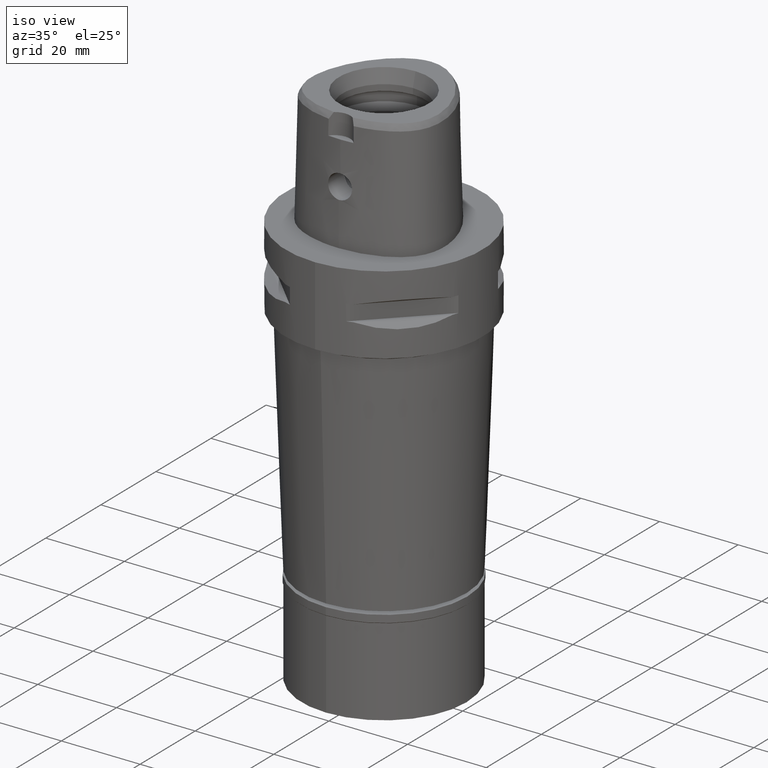
[diagram: clean part render]
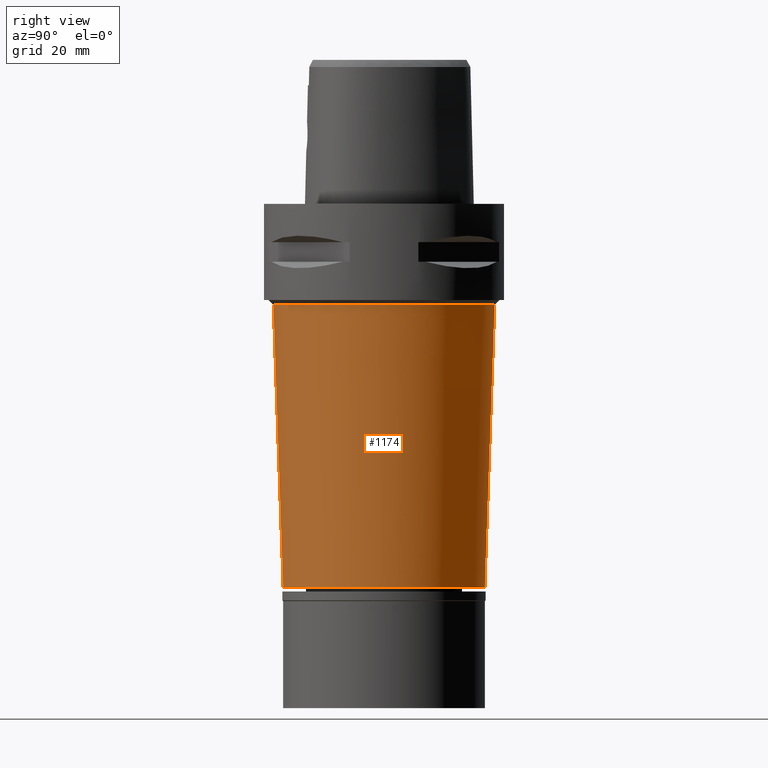
[diagram: tour spotlight — one face highlighted and labeled with its STEP entity id]
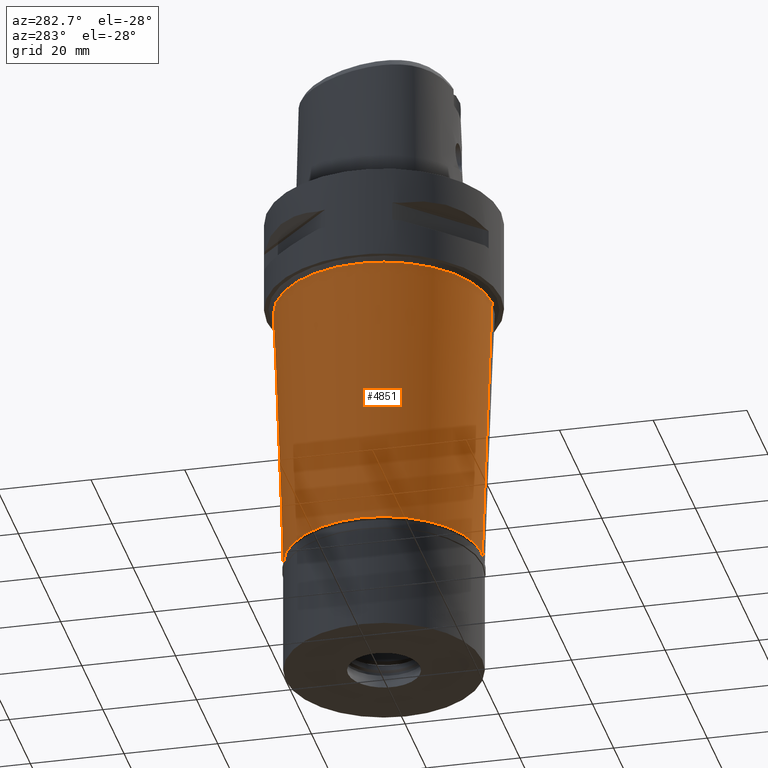
[diagram: tour spotlight — one face highlighted and labeled with its STEP entity id]
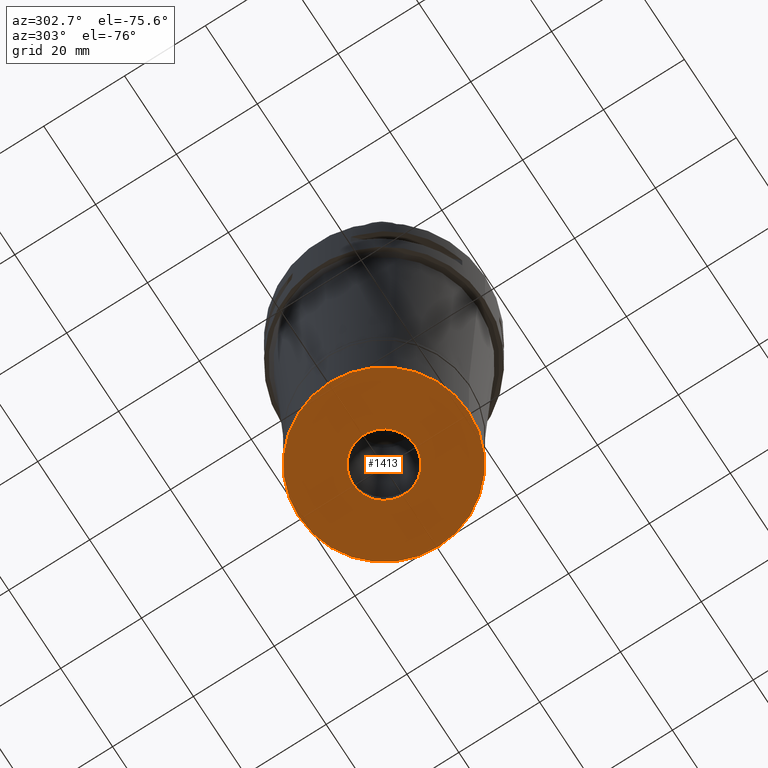
[diagram: tour spotlight — one face highlighted and labeled with its STEP entity id]
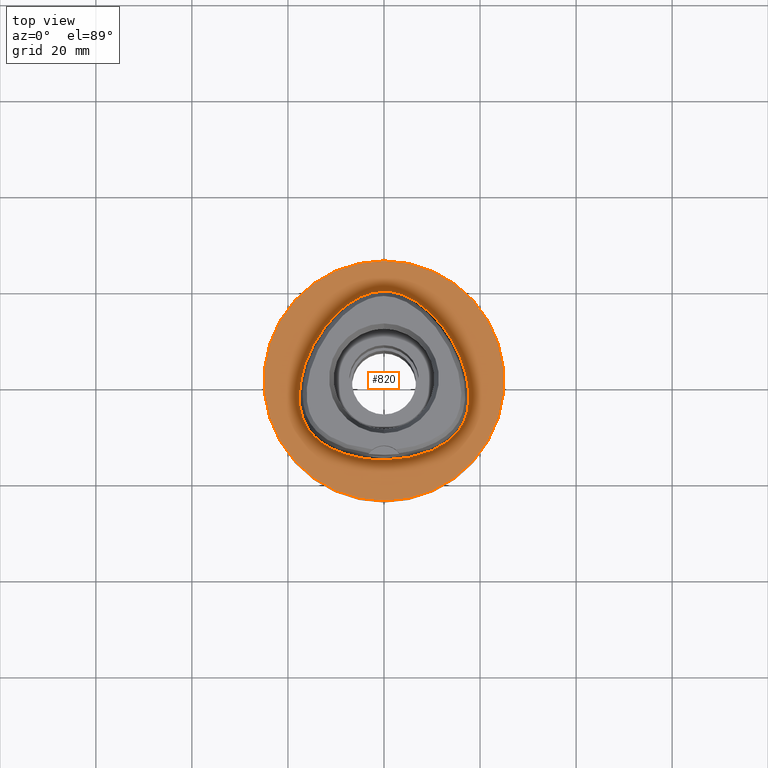
[diagram: tour spotlight — one face highlighted and labeled with its STEP entity id]
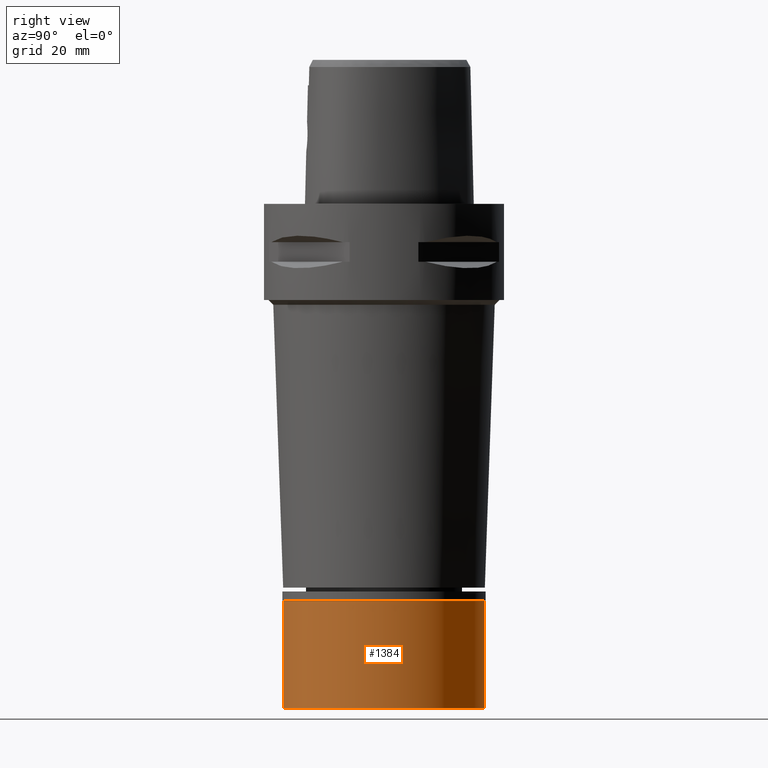
[diagram: tour spotlight — one face highlighted and labeled with its STEP entity id]
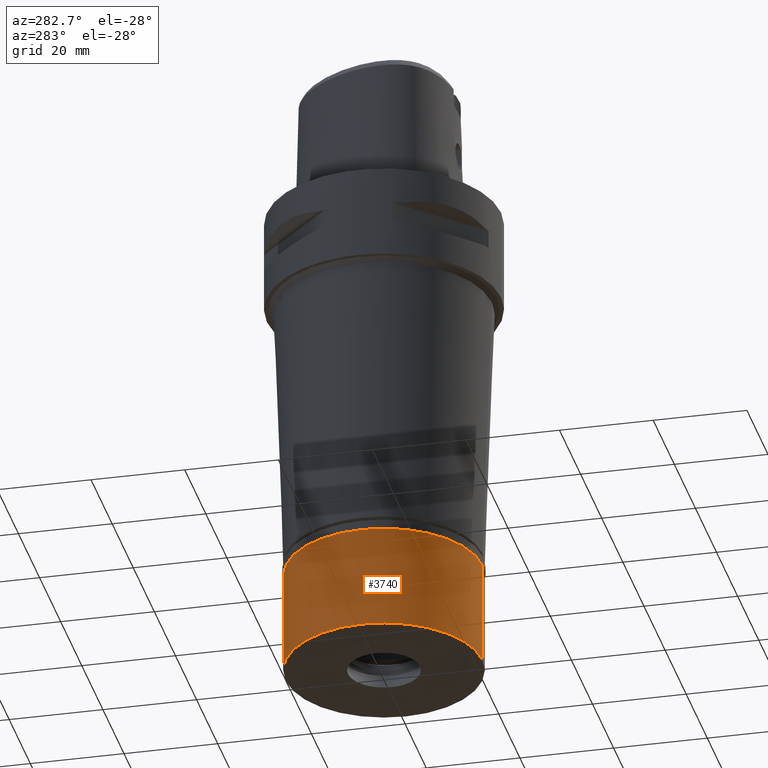
[diagram: tour spotlight — one face highlighted and labeled with its STEP entity id]
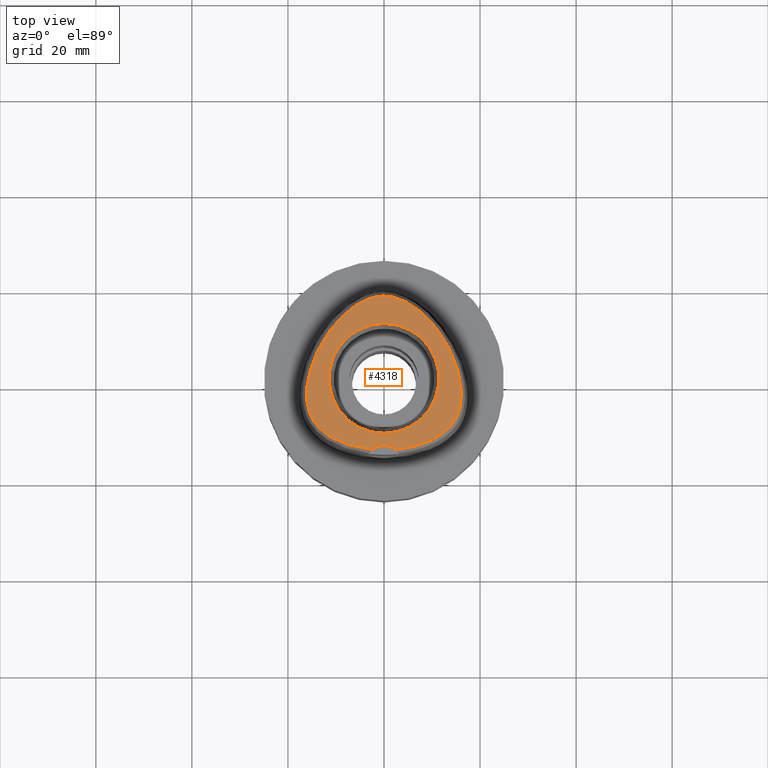
[diagram: tour spotlight — one face highlighted and labeled with its STEP entity id]
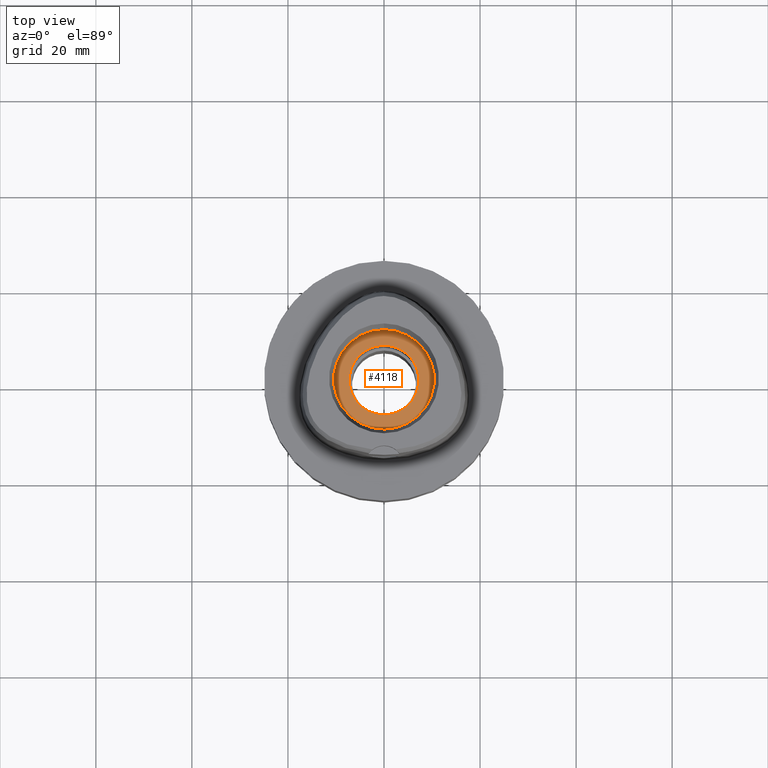
[diagram: tour spotlight — one face highlighted and labeled with its STEP entity id]
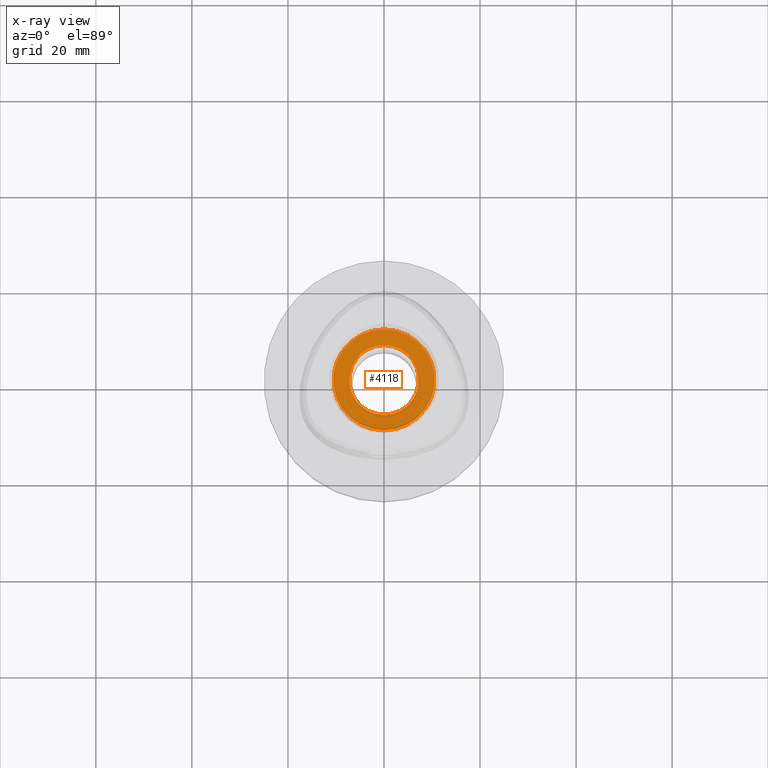
[diagram: x-ray of the same camera — body ghosted, this tour face saturated]
A machine part: a face-by-face anatomy tour. The part has 97 B-rep faces; the first image is the clean iso view, then the 8 largest visible faces are spotlighted one at a time (largest first), each with its STEP entity span.

Face 1 — right view, entity #1174. In plain terms, the highlighted conical surface has half-angle 2 deg.
Definition (entity closure, byte-faithful):
#244 = DIRECTION ( 'NONE',  ( 0.0000000000000000000, 1.000000000000000000, 0.0000000000000000000 ) ) ;
#315 = DIRECTION ( 'NONE',  ( 0.0000000000000000000, 0.0000000000000000000, 1.000000000000000000 ) ) ;
#345 = EDGE_LOOP ( 'NONE', ( #3146, #3630, #3706, #2074 ) ) ;
#496 = CARTESIAN_POINT ( 'NONE',  ( 0.0000000000000000000, 23.05683332305999755, -21.00000000000000000 ) ) ;
#557 = CARTESIAN_POINT ( 'NONE',  ( 0.0000000000000000000, 0.0000000000000000000, -21.00000000000000000 ) ) ;
#561 = FACE_OUTER_BOUND ( 'NONE', #345, .T. ) ;
#723 = CARTESIAN_POINT ( 'NONE',  ( 0.0000000000000000000, 21.00000000000000000, -79.90000000000000568 ) ) ;
#792 = EDGE_CURVE ( 'NONE', #4432, #4296, #2516, .T. ) ;
#963 = VERTEX_POINT ( 'NONE', #723 ) ;
#1069 = AXIS2_PLACEMENT_3D ( 'NONE', #4406, #1716, #244 ) ;
#1174 = ADVANCED_FACE ( 'NONE', ( #561 ), #4697, .T. ) ;
#1505 = EDGE_CURVE ( 'NONE', #4432, #2061, #3593, .T. ) ;
#1716 = DIRECTION ( 'NONE',  ( 0.0000000000000000000, 0.0000000000000000000, 1.000000000000000000 ) ) ;
#1762 = DIRECTION ( 'NONE',  ( 0.0000000000000000000, 0.0000000000000000000, 1.000000000000000000 ) ) ;
#2037 = DIRECTION ( 'NONE',  ( 0.0000000000000000000, -1.000000000000000000, 0.0000000000000000000 ) ) ;
#2061 = VERTEX_POINT ( 'NONE', #496 ) ;
#2074 = ORIENTED_EDGE ( 'NONE', *, *, #3164, .F. ) ;
#2190 = LINE ( 'NONE', #3081, #2566 ) ;
#2516 = LINE ( 'NONE', #3306, #2800 ) ;
#2566 = VECTOR ( 'NONE', #3391, 999.9999999999998863 ) ;
#2746 = AXIS2_PLACEMENT_3D ( 'NONE', #4396, #315, #3577 ) ;
#2800 = VECTOR ( 'NONE', #4820, 999.9999999999998863 ) ;
#3003 = CARTESIAN_POINT ( 'NONE',  ( 0.0000000000000000000, -21.00000000000000000, -79.90000000000000568 ) ) ;
#3081 = CARTESIAN_POINT ( 'NONE',  ( 0.0000000000000000000, 23.05683332305999755, -21.00000000000000000 ) ) ;
#3146 = ORIENTED_EDGE ( 'NONE', *, *, #1505, .F. ) ;
#3164 = EDGE_CURVE ( 'NONE', #2061, #963, #2190, .T. ) ;
#3192 = CARTESIAN_POINT ( 'NONE',  ( 0.0000000000000000000, -23.05683332305999755, -21.00000000000000000 ) ) ;
#3306 = CARTESIAN_POINT ( 'NONE',  ( 0.0000000000000000000, -23.05683332305999755, -21.00000000000000000 ) ) ;
#3391 = DIRECTION ( 'NONE',  ( 0.0000000000000000000, -0.03489949670246989682, -0.9993908270190968723 ) ) ;
#3577 = DIRECTION ( 'NONE',  ( 0.0000000000000000000, -1.000000000000000000, 0.0000000000000000000 ) ) ;
#3593 = CIRCLE ( 'NONE', #4619, 23.05683332305999755 ) ;
#3630 = ORIENTED_EDGE ( 'NONE', *, *, #792, .T. ) ;
#3706 = ORIENTED_EDGE ( 'NONE', *, *, #4048, .T. ) ;
#4048 = EDGE_CURVE ( 'NONE', #4296, #963, #4305, .T. ) ;
#4296 = VERTEX_POINT ( 'NONE', #3003 ) ;
#4305 = CIRCLE ( 'NONE', #2746, 21.00000000000000000 ) ;
#4396 = CARTESIAN_POINT ( 'NONE',  ( 0.0000000000000000000, 0.0000000000000000000, -79.90000000000000568 ) ) ;
#4406 = CARTESIAN_POINT ( 'NONE',  ( 0.0000000000000000000, 0.0000000000000000000, -50.45000000000000284 ) ) ;
#4432 = VERTEX_POINT ( 'NONE', #3192 ) ;
#4619 = AXIS2_PLACEMENT_3D ( 'NONE', #557, #1762, #2037 ) ;
#4697 = CONICAL_SURFACE ( 'NONE', #1069, 22.02841666152999878, 0.03490658503987931205 ) ;
#4820 = DIRECTION ( 'NONE',  ( 0.0000000000000000000, 0.03489949670246989682, -0.9993908270190968723 ) ) ;

Face 2 — auxiliary view, entity #4851. In plain terms, the highlighted conical surface has half-angle 2 deg.
Definition (entity closure, byte-faithful):
#496 = CARTESIAN_POINT ( 'NONE',  ( 0.0000000000000000000, 23.05683332305999755, -21.00000000000000000 ) ) ;
#546 = CARTESIAN_POINT ( 'NONE',  ( 0.0000000000000000000, 0.0000000000000000000, -21.00000000000000000 ) ) ;
#723 = CARTESIAN_POINT ( 'NONE',  ( 0.0000000000000000000, 21.00000000000000000, -79.90000000000000568 ) ) ;
#762 = AXIS2_PLACEMENT_3D ( 'NONE', #858, #4257, #1994 ) ;
#792 = EDGE_CURVE ( 'NONE', #4432, #4296, #2516, .T. ) ;
#858 = CARTESIAN_POINT ( 'NONE',  ( 0.0000000000000000000, 0.0000000000000000000, -79.90000000000000568 ) ) ;
#963 = VERTEX_POINT ( 'NONE', #723 ) ;
#1097 = AXIS2_PLACEMENT_3D ( 'NONE', #1165, #2305, #1939 ) ;
#1165 = CARTESIAN_POINT ( 'NONE',  ( 0.0000000000000000000, 0.0000000000000000000, -50.45000000000000284 ) ) ;
#1622 = CIRCLE ( 'NONE', #762, 21.00000000000000000 ) ;
#1624 = DIRECTION ( 'NONE',  ( 0.0000000000000000000, 0.0000000000000000000, -1.000000000000000000 ) ) ;
#1939 = DIRECTION ( 'NONE',  ( 0.0000000000000000000, 1.000000000000000000, 0.0000000000000000000 ) ) ;
#1947 = EDGE_CURVE ( 'NONE', #963, #4296, #1622, .T. ) ;
#1994 = DIRECTION ( 'NONE',  ( 0.0000000000000000000, 1.000000000000000000, 0.0000000000000000000 ) ) ;
#2050 = CONICAL_SURFACE ( 'NONE', #1097, 22.02841666152999878, 0.03490658503987931205 ) ;
#2061 = VERTEX_POINT ( 'NONE', #496 ) ;
#2092 = EDGE_CURVE ( 'NONE', #4432, #2061, #2892, .T. ) ;
#2190 = LINE ( 'NONE', #3081, #2566 ) ;
#2211 = EDGE_LOOP ( 'NONE', ( #4780, #4538, #3942, #2703 ) ) ;
#2305 = DIRECTION ( 'NONE',  ( 0.0000000000000000000, 0.0000000000000000000, 1.000000000000000000 ) ) ;
#2516 = LINE ( 'NONE', #3306, #2800 ) ;
#2566 = VECTOR ( 'NONE', #3391, 999.9999999999998863 ) ;
#2703 = ORIENTED_EDGE ( 'NONE', *, *, #3164, .T. ) ;
#2800 = VECTOR ( 'NONE', #4820, 999.9999999999998863 ) ;
#2892 = CIRCLE ( 'NONE', #4546, 23.05683332305999755 ) ;
#3003 = CARTESIAN_POINT ( 'NONE',  ( 0.0000000000000000000, -21.00000000000000000, -79.90000000000000568 ) ) ;
#3081 = CARTESIAN_POINT ( 'NONE',  ( 0.0000000000000000000, 23.05683332305999755, -21.00000000000000000 ) ) ;
#3125 = DIRECTION ( 'NONE',  ( 0.0000000000000000000, -1.000000000000000000, 0.0000000000000000000 ) ) ;
#3164 = EDGE_CURVE ( 'NONE', #2061, #963, #2190, .T. ) ;
#3192 = CARTESIAN_POINT ( 'NONE',  ( 0.0000000000000000000, -23.05683332305999755, -21.00000000000000000 ) ) ;
#3306 = CARTESIAN_POINT ( 'NONE',  ( 0.0000000000000000000, -23.05683332305999755, -21.00000000000000000 ) ) ;
#3391 = DIRECTION ( 'NONE',  ( 0.0000000000000000000, -0.03489949670246989682, -0.9993908270190968723 ) ) ;
#3942 = ORIENTED_EDGE ( 'NONE', *, *, #2092, .T. ) ;
#4257 = DIRECTION ( 'NONE',  ( 0.0000000000000000000, 0.0000000000000000000, 1.000000000000000000 ) ) ;
#4296 = VERTEX_POINT ( 'NONE', #3003 ) ;
#4432 = VERTEX_POINT ( 'NONE', #3192 ) ;
#4538 = ORIENTED_EDGE ( 'NONE', *, *, #792, .F. ) ;
#4546 = AXIS2_PLACEMENT_3D ( 'NONE', #546, #1624, #3125 ) ;
#4553 = FACE_OUTER_BOUND ( 'NONE', #2211, .T. ) ;
#4780 = ORIENTED_EDGE ( 'NONE', *, *, #1947, .T. ) ;
#4820 = DIRECTION ( 'NONE',  ( 0.0000000000000000000, 0.03489949670246989682, -0.9993908270190968723 ) ) ;
#4851 = ADVANCED_FACE ( 'NONE', ( #4553 ), #2050, .T. ) ;

Face 3 — auxiliary view, entity #1413. In plain terms, the highlighted planar face has unit normal (0, 0, -1).
Definition (entity closure, byte-faithful):
#126 = DIRECTION ( 'NONE',  ( 0.0000000000000000000, 0.0000000000000000000, 1.000000000000000000 ) ) ;
#184 = ORIENTED_EDGE ( 'NONE', *, *, #1420, .F. ) ;
#210 = CIRCLE ( 'NONE', #4297, 7.700000000000000178 ) ;
#527 = VERTEX_POINT ( 'NONE', #2375 ) ;
#577 = DIRECTION ( 'NONE',  ( 0.0000000000000000000, -1.000000000000000000, 0.0000000000000000000 ) ) ;
#664 = CARTESIAN_POINT ( 'NONE',  ( 0.0000000000000000000, 0.0000000000000000000, -24.29999999999999716 ) ) ;
#849 = VERTEX_POINT ( 'NONE', #2169 ) ;
#935 = CARTESIAN_POINT ( 'NONE',  ( 0.0000000000000000000, 0.0000000000000000000, -24.29999999999999716 ) ) ;
#945 = PLANE ( 'NONE',  #1149 ) ;
#1149 = AXIS2_PLACEMENT_3D ( 'NONE', #2793, #3632, #3184 ) ;
#1162 = FACE_OUTER_BOUND ( 'NONE', #4250, .T. ) ;
#1413 = ADVANCED_FACE ( 'NONE', ( #1162, #4321 ), #945, .T. ) ;
#1420 = EDGE_CURVE ( 'NONE', #849, #1582, #210, .T. ) ;
#1480 = EDGE_CURVE ( 'NONE', #3044, #527, #3904, .T. ) ;
#1582 = VERTEX_POINT ( 'NONE', #4293 ) ;
#1710 = CARTESIAN_POINT ( 'NONE',  ( 0.0000000000000000000, 0.0000000000000000000, -24.29999999999999716 ) ) ;
#1839 = EDGE_LOOP ( 'NONE', ( #184, #2191 ) ) ;
#1870 = AXIS2_PLACEMENT_3D ( 'NONE', #1710, #2504, #577 ) ;
#2028 = DIRECTION ( 'NONE',  ( 0.0000000000000000000, 1.000000000000000000, 0.0000000000000000000 ) ) ;
#2084 = DIRECTION ( 'NONE',  ( 0.0000000000000000000, 1.000000000000000000, 0.0000000000000000000 ) ) ;
#2091 = AXIS2_PLACEMENT_3D ( 'NONE', #664, #2567, #3640 ) ;
#2137 = CARTESIAN_POINT ( 'NONE',  ( 0.0000000000000000000, -21.00000000000000000, -24.29999999999999716 ) ) ;
#2169 = CARTESIAN_POINT ( 'NONE',  ( 0.0000000000000000000, 7.700000000000000178, -24.29999999999999716 ) ) ;
#2191 = ORIENTED_EDGE ( 'NONE', *, *, #3448, .F. ) ;
#2200 = ORIENTED_EDGE ( 'NONE', *, *, #3377, .F. ) ;
#2375 = CARTESIAN_POINT ( 'NONE',  ( 0.0000000000000000000, 21.00000000000000000, -24.29999999999999716 ) ) ;
#2404 = CIRCLE ( 'NONE', #2091, 7.700000000000000178 ) ;
#2455 = CARTESIAN_POINT ( 'NONE',  ( 0.0000000000000000000, 0.0000000000000000000, -24.29999999999999716 ) ) ;
#2504 = DIRECTION ( 'NONE',  ( 0.0000000000000000000, 0.0000000000000000000, 1.000000000000000000 ) ) ;
#2567 = DIRECTION ( 'NONE',  ( 0.0000000000000000000, 0.0000000000000000000, -1.000000000000000000 ) ) ;
#2793 = CARTESIAN_POINT ( 'NONE',  ( 0.0000000000000000000, 0.0000000000000000000, -24.29999999999999716 ) ) ;
#2844 = DIRECTION ( 'NONE',  ( 0.0000000000000000000, 0.0000000000000000000, -1.000000000000000000 ) ) ;
#3044 = VERTEX_POINT ( 'NONE', #2137 ) ;
#3184 = DIRECTION ( 'NONE',  ( 0.0000000000000000000, -1.000000000000000000, 0.0000000000000000000 ) ) ;
#3373 = ORIENTED_EDGE ( 'NONE', *, *, #1480, .F. ) ;
#3377 = EDGE_CURVE ( 'NONE', #527, #3044, #3583, .T. ) ;
#3448 = EDGE_CURVE ( 'NONE', #1582, #849, #2404, .T. ) ;
#3583 = CIRCLE ( 'NONE', #4061, 21.00000000000000000 ) ;
#3632 = DIRECTION ( 'NONE',  ( 0.0000000000000000000, 0.0000000000000000000, -1.000000000000000000 ) ) ;
#3640 = DIRECTION ( 'NONE',  ( 0.0000000000000000000, -1.000000000000000000, 0.0000000000000000000 ) ) ;
#3904 = CIRCLE ( 'NONE', #1870, 21.00000000000000000 ) ;
#4061 = AXIS2_PLACEMENT_3D ( 'NONE', #935, #126, #2028 ) ;
#4250 = EDGE_LOOP ( 'NONE', ( #2200, #3373 ) ) ;
#4293 = CARTESIAN_POINT ( 'NONE',  ( 0.0000000000000000000, -7.700000000000000178, -24.29999999999999716 ) ) ;
#4297 = AXIS2_PLACEMENT_3D ( 'NONE', #2455, #2844, #2084 ) ;
#4321 = FACE_BOUND ( 'NONE', #1839, .T. ) ;

Face 4 — top view, entity #820. In plain terms, the highlighted planar face has unit normal (0, 0, -1).
Definition (entity closure, byte-faithful):
#159 = DIRECTION ( 'NONE',  ( 0.0000000000000000000, -1.000000000000000000, 0.0000000000000000000 ) ) ;
#211 = CARTESIAN_POINT ( 'NONE',  ( 16.51672828905733681, 3.703437514886214643, -1.744312156005825912E-06 ) ) ;
#286 = CARTESIAN_POINT ( 'NONE',  ( -14.78833380201542447, -11.28232909967865361, 1.088239041252287570E-07 ) ) ;
#295 = CARTESIAN_POINT ( 'NONE',  ( 11.46563511374381328, 12.45218752828597530, -1.744312156005825912E-06 ) ) ;
#321 = ORIENTED_EDGE ( 'NONE', *, *, #4622, .F. ) ;
#404 = VERTEX_POINT ( 'NONE', #2058 ) ;
#417 = EDGE_LOOP ( 'NONE', ( #580, #321 ) ) ;
#559 = CARTESIAN_POINT ( 'NONE',  ( 16.20602475747607940, -9.356552756219091549, -1.744312156005825912E-06 ) ) ;
#578 = CARTESIAN_POINT ( 'NONE',  ( 13.50690096184690425, -12.48264651881767051, -1.744312156005825912E-06 ) ) ;
#580 = ORIENTED_EDGE ( 'NONE', *, *, #4655, .F. ) ;
#596 = CARTESIAN_POINT ( 'NONE',  ( -4.728927205647177168, 17.73480468501485419, 1.088239041252287570E-07 ) ) ;
#603 = CARTESIAN_POINT ( 'NONE',  ( 0.6801907889749732039, 18.69500004360072154, -1.744312156005825912E-06 ) ) ;
#642 = FACE_OUTER_BOUND ( 'NONE', #417, .T. ) ;
#658 = CARTESIAN_POINT ( 'NONE',  ( 17.71143739935840600, -3.269218749715581129, -1.744312156005825912E-06 ) ) ;
#820 = ADVANCED_FACE ( 'NONE', ( #642, #1342 ), #2145, .F. ) ;
#941 = DIRECTION ( 'NONE',  ( 0.0000000000000000000, 0.0000000000000000000, -1.000000000000000000 ) ) ;
#985 = CARTESIAN_POINT ( 'NONE',  ( -16.51672824523044270, 3.703437499071053907, 1.088239041252287570E-07 ) ) ;
#993 = CARTESIAN_POINT ( 'NONE',  ( 7.243243713393999948E-11, 18.69499999997999851, 1.586138627847999922E-13 ) ) ;
#1040 = CARTESIAN_POINT ( 'NONE',  ( -2.040572357107150125, 18.55015624731283452, 1.088239041252287570E-07 ) ) ;
#1064 = CARTESIAN_POINT ( 'NONE',  ( -1.728596458601000357E-11, -16.45500000000000185, 1.597240858093999809E-13 ) ) ;
#1272 = CARTESIAN_POINT ( 'NONE',  ( 0.0000000000000000000, 1.284348330606000068E-14, 0.0000000000000000000 ) ) ;
#1334 = CARTESIAN_POINT ( 'NONE',  ( 2.040572366645008184, 18.55015629294168988, -1.744312156005825912E-06 ) ) ;
#1342 = FACE_BOUND ( 'NONE', #1740, .T. ) ;
#1358 = CARTESIAN_POINT ( 'NONE',  ( 14.78833383575404170, -11.28232913167233242, -1.744312156005825912E-06 ) ) ;
#1401 = CARTESIAN_POINT ( 'NONE',  ( -13.50690093311215989, -12.48264648222586004, 1.088239041252287570E-07 ) ) ;
#1427 = CARTESIAN_POINT ( 'NONE',  ( -16.66912841889917374, -8.445800780143073894, 1.088239041252287570E-07 ) ) ;
#1481 = CIRCLE ( 'NONE', #2520, 25.00000000000000000 ) ;
#1559 = B_SPLINE_CURVE_WITH_KNOTS ( 'NONE', 3,
 ( #3287, #3209, #1040, #596, #4026, #2891, #2107, #985, #2553, #2131, #2081, #1811, #1427, #1782, #4803, #286, #1401, #4720, #3605, #4051, #4451, #1064 ),
 .UNSPECIFIED., .F., .F.,
 ( 4, 1, 1, 1, 1, 1, 1, 1, 1, 1, 1, 1, 1, 1, 1, 1, 1, 1, 1, 4 ),
 ( 0.0000000000000000000, 0.04166666666808999803, 0.08333333333469000737, 0.1666666666679000042, 0.2500000000011000090, 0.3333333333342999860, 0.4166666666675999942, 0.5000000000008000267, 0.5416666666674000430, 0.5833333333340000593, 0.6250000000005999645, 0.6458333333339000282, 0.6666666666671999808, 0.6875000000005000445, 0.7083333333337999971, 0.7500000000004000134, 0.7916666666671000607, 0.8333333333336000459, 0.9166666666668999985, 1.000000000000000000 ),
 .UNSPECIFIED. ) ;
#1681 = ORIENTED_EDGE ( 'NONE', *, *, #2993, .F. ) ;
#1740 = EDGE_LOOP ( 'NONE', ( #3952, #1681 ) ) ;
#1771 = DIRECTION ( 'NONE',  ( 0.0000000000000000000, -1.000000000000000000, 0.0000000000000000000 ) ) ;
#1782 = CARTESIAN_POINT ( 'NONE',  ( -16.20602471727766059, -9.356552733011271883, 1.088239041252287570E-07 ) ) ;
#1811 = CARTESIAN_POINT ( 'NONE',  ( -17.16495051518848669, -7.165908202348020950, 1.088239041252287570E-07 ) ) ;
#1851 = B_SPLINE_CURVE_WITH_KNOTS ( 'NONE', 3,
 ( #2795, #2457, #3185, #3268, #4032, #578, #1358, #2161, #559, #3585, #2064, #3982, #658, #2085, #211, #3657, #295, #4295, #4374, #1334, #603, #993 ),
 .UNSPECIFIED., .F., .F.,
 ( 4, 1, 1, 1, 1, 1, 1, 1, 1, 1, 1, 1, 1, 1, 1, 1, 1, 1, 1, 4 ),
 ( 0.0000000000000000000, 0.08333333333350000094, 0.1666666666668000230, 0.2083333333333000081, 0.2499999999998999967, 0.2916666666666000163, 0.3124999999998999689, 0.3333333333331000015, 0.3541666666665000407, 0.3749999999997999933, 0.4166666666664000096, 0.4583333333330000259, 0.4999999999995999866, 0.5833333333328000192, 0.6666666666660999718, 0.7499999999993000044, 0.8333333333325000369, 0.9166666666657000695, 0.9583333333322999747, 1.000000000000000000 ),
 .UNSPECIFIED. ) ;
#2058 = CARTESIAN_POINT ( 'NONE',  ( 0.0000000000000000000, -25.00000000000000000, 0.0000000000000000000 ) ) ;
#2064 = CARTESIAN_POINT ( 'NONE',  ( 17.16495055975975248, -7.165908215576941132, -1.744312156005825912E-06 ) ) ;
#2081 = CARTESIAN_POINT ( 'NONE',  ( -17.56373942662683874, -5.455996093363066457, 1.088239041252287570E-07 ) ) ;
#2085 = CARTESIAN_POINT ( 'NONE',  ( 17.49754716624818229, -0.2285937423437257865, -1.744312156005825912E-06 ) ) ;
#2107 = CARTESIAN_POINT ( 'NONE',  ( -14.38008119453428613, 8.302343748632480924, 1.088239041252287570E-07 ) ) ;
#2131 = CARTESIAN_POINT ( 'NONE',  ( -17.71143735288884002, -3.269218750017643949, 1.088239041252287570E-07 ) ) ;
#2145 = PLANE ( 'NONE',  #3748 ) ;
#2161 = CARTESIAN_POINT ( 'NONE',  ( 15.64884227789647220, -10.21298830693598703, -1.744312156005825912E-06 ) ) ;
#2282 = DIRECTION ( 'NONE',  ( 0.0000000000000000000, 0.0000000000000000000, -1.000000000000000000 ) ) ;
#2457 = CARTESIAN_POINT ( 'NONE',  ( 1.683697725103081133, -16.45500004360071244, -1.744312156005826124E-06 ) ) ;
#2520 = AXIS2_PLACEMENT_3D ( 'NONE', #4290, #2282, #2817 ) ;
#2553 = CARTESIAN_POINT ( 'NONE',  ( -17.49754712038485494, -0.2285937504776754392, 1.088239041252287570E-07 ) ) ;
#2580 = VERTEX_POINT ( 'NONE', #3591 ) ;
#2795 = CARTESIAN_POINT ( 'NONE',  ( -1.728596458601000357E-11, -16.45500000000000185, 1.597240858093999809E-13 ) ) ;
#2817 = DIRECTION ( 'NONE',  ( 0.0000000000000000000, 1.000000000000000000, 0.0000000000000000000 ) ) ;
#2891 = CARTESIAN_POINT ( 'NONE',  ( -11.46563507814293104, 12.45218749823809823, 1.088239041252287570E-07 ) ) ;
#2993 = EDGE_CURVE ( 'NONE', #4379, #2580, #1851, .T. ) ;
#3185 = CARTESIAN_POINT ( 'NONE',  ( 5.051093175302274751, -16.15562504316535808, -1.744312156005825912E-06 ) ) ;
#3209 = CARTESIAN_POINT ( 'NONE',  ( -0.6801907856718545364, 18.69499999728294526, 1.088239041252287438E-07 ) ) ;
#3268 = CARTESIAN_POINT ( 'NONE',  ( 8.946741571141094695, -15.03902347871851930, -1.744312156005825912E-06 ) ) ;
#3287 = CARTESIAN_POINT ( 'NONE',  ( 7.243243713393999948E-11, 18.69499999997999851, 1.586138627847999922E-13 ) ) ;
#3304 = AXIS2_PLACEMENT_3D ( 'NONE', #1272, #941, #159 ) ;
#3585 = CARTESIAN_POINT ( 'NONE',  ( 16.66912846131180004, -8.445800799004141268, -1.744312156005825912E-06 ) ) ;
#3591 = CARTESIAN_POINT ( 'NONE',  ( 7.243243713393999948E-11, 18.69499999997999851, 1.586138627847999922E-13 ) ) ;
#3605 = CARTESIAN_POINT ( 'NONE',  ( -8.946741555252165412, -15.03902343493533955, 1.088239041252287570E-07 ) ) ;
#3641 = CARTESIAN_POINT ( 'NONE',  ( 0.0000000000000000000, 1.224646799146999965E-14, 0.0000000000000000000 ) ) ;
#3657 = CARTESIAN_POINT ( 'NONE',  ( 14.38008123485800027, 8.302343771910768666, -1.744312156005825912E-06 ) ) ;
#3748 = AXIS2_PLACEMENT_3D ( 'NONE', #3641, #4357, #1771 ) ;
#3952 = ORIENTED_EDGE ( 'NONE', *, *, #3961, .F. ) ;
#3961 = EDGE_CURVE ( 'NONE', #2580, #4379, #1559, .T. ) ;
#3982 = CARTESIAN_POINT ( 'NONE',  ( 17.56373947267987745, -5.455996099955068956, -1.744312156005825912E-06 ) ) ;
#4026 = CARTESIAN_POINT ( 'NONE',  ( -7.967839662530810330, 15.83070312284171699, 1.088239041252287570E-07 ) ) ;
#4032 = CARTESIAN_POINT ( 'NONE',  ( 11.68694518746131905, -13.70394535052376739, -1.744312156005825912E-06 ) ) ;
#4051 = CARTESIAN_POINT ( 'NONE',  ( -5.051093167090364489, -16.15562499730855706, 1.088239041252287570E-07 ) ) ;
#4095 = CIRCLE ( 'NONE', #3304, 25.00000000000000000 ) ;
#4228 = CARTESIAN_POINT ( 'NONE',  ( -1.728596458601000357E-11, -16.45500000000000185, 1.597240858093999809E-13 ) ) ;
#4290 = CARTESIAN_POINT ( 'NONE',  ( 0.0000000000000000000, 1.284348330606000068E-14, 0.0000000000000000000 ) ) ;
#4295 = CARTESIAN_POINT ( 'NONE',  ( 7.967839691386575218, 15.83070315959670893, -1.744312156005825912E-06 ) ) ;
#4343 = VERTEX_POINT ( 'NONE', #4494 ) ;
#4357 = DIRECTION ( 'NONE',  ( 0.0000000000000000000, 0.0000000000000000000, -1.000000000000000000 ) ) ;
#4374 = CARTESIAN_POINT ( 'NONE',  ( 4.728927225558295255, 17.73480472737178459, -1.744312156005825912E-06 ) ) ;
#4379 = VERTEX_POINT ( 'NONE', #4228 ) ;
#4451 = CARTESIAN_POINT ( 'NONE',  ( -1.683697722367677452, -16.45499999727613627, 1.088239041252287570E-07 ) ) ;
#4494 = CARTESIAN_POINT ( 'NONE',  ( 0.0000000000000000000, 25.00000000000000000, 0.0000000000000000000 ) ) ;
#4622 = EDGE_CURVE ( 'NONE', #404, #4343, #4095, .T. ) ;
#4655 = EDGE_CURVE ( 'NONE', #4343, #404, #1481, .T. ) ;
#4720 = CARTESIAN_POINT ( 'NONE',  ( -11.68694516448478105, -13.70394531012862060, 1.088239041252287570E-07 ) ) ;
#4803 = CARTESIAN_POINT ( 'NONE',  ( -15.64884224035295546, -10.21298827964216294, 1.088239041252287570E-07 ) ) ;

Face 5 — right view, entity #1384. In plain terms, the highlighted cylindrical surface (partial cylindrical patch) has radius 21 mm, axis along (0, 0, -1).
Definition (entity closure, byte-faithful):
#16 = EDGE_CURVE ( 'NONE', #4857, #2040, #368, .T. ) ;
#251 = ORIENTED_EDGE ( 'NONE', *, *, #3336, .F. ) ;
#368 = CIRCLE ( 'NONE', #4609, 21.00000000000000000 ) ;
#389 = DIRECTION ( 'NONE',  ( 0.0000000000000000000, 1.000000000000000000, 0.0000000000000000000 ) ) ;
#484 = LINE ( 'NONE', #4576, #4225 ) ;
#527 = VERTEX_POINT ( 'NONE', #2375 ) ;
#577 = DIRECTION ( 'NONE',  ( 0.0000000000000000000, -1.000000000000000000, 0.0000000000000000000 ) ) ;
#1269 = LINE ( 'NONE', #3574, #1368 ) ;
#1352 = CARTESIAN_POINT ( 'NONE',  ( 0.0000000000000000000, 21.00000000000000000, -2.000000000000000000 ) ) ;
#1368 = VECTOR ( 'NONE', #3949, 1000.000000000000000 ) ;
#1384 = ADVANCED_FACE ( 'NONE', ( #2748 ), #4650, .T. ) ;
#1462 = DIRECTION ( 'NONE',  ( 0.0000000000000000000, 0.0000000000000000000, -1.000000000000000000 ) ) ;
#1480 = EDGE_CURVE ( 'NONE', #3044, #527, #3904, .T. ) ;
#1710 = CARTESIAN_POINT ( 'NONE',  ( 0.0000000000000000000, 0.0000000000000000000, -24.29999999999999716 ) ) ;
#1870 = AXIS2_PLACEMENT_3D ( 'NONE', #1710, #2504, #577 ) ;
#2040 = VERTEX_POINT ( 'NONE', #3868 ) ;
#2137 = CARTESIAN_POINT ( 'NONE',  ( 0.0000000000000000000, -21.00000000000000000, -24.29999999999999716 ) ) ;
#2215 = EDGE_LOOP ( 'NONE', ( #4848, #4358, #4292, #251 ) ) ;
#2375 = CARTESIAN_POINT ( 'NONE',  ( 0.0000000000000000000, 21.00000000000000000, -24.29999999999999716 ) ) ;
#2504 = DIRECTION ( 'NONE',  ( 0.0000000000000000000, 0.0000000000000000000, 1.000000000000000000 ) ) ;
#2748 = FACE_OUTER_BOUND ( 'NONE', #2215, .T. ) ;
#2750 = DIRECTION ( 'NONE',  ( 0.0000000000000000000, 0.0000000000000000000, -1.000000000000000000 ) ) ;
#2751 = EDGE_CURVE ( 'NONE', #2040, #3044, #484, .T. ) ;
#3041 = AXIS2_PLACEMENT_3D ( 'NONE', #4268, #3781, #3419 ) ;
#3044 = VERTEX_POINT ( 'NONE', #2137 ) ;
#3336 = EDGE_CURVE ( 'NONE', #4857, #527, #1269, .T. ) ;
#3419 = DIRECTION ( 'NONE',  ( 0.0000000000000000000, -1.000000000000000000, 0.0000000000000000000 ) ) ;
#3574 = CARTESIAN_POINT ( 'NONE',  ( 0.0000000000000000000, 21.00000000000000000, -2.000000000000000000 ) ) ;
#3781 = DIRECTION ( 'NONE',  ( 0.0000000000000000000, 0.0000000000000000000, -1.000000000000000000 ) ) ;
#3868 = CARTESIAN_POINT ( 'NONE',  ( 0.0000000000000000000, -21.00000000000000000, -2.000000000000000000 ) ) ;
#3904 = CIRCLE ( 'NONE', #1870, 21.00000000000000000 ) ;
#3949 = DIRECTION ( 'NONE',  ( 0.0000000000000000000, 0.0000000000000000000, -1.000000000000000000 ) ) ;
#4225 = VECTOR ( 'NONE', #2750, 1000.000000000000000 ) ;
#4268 = CARTESIAN_POINT ( 'NONE',  ( 0.0000000000000000000, 0.0000000000000000000, 0.0000000000000000000 ) ) ;
#4292 = ORIENTED_EDGE ( 'NONE', *, *, #1480, .T. ) ;
#4358 = ORIENTED_EDGE ( 'NONE', *, *, #2751, .T. ) ;
#4576 = CARTESIAN_POINT ( 'NONE',  ( 0.0000000000000000000, -21.00000000000000000, -2.000000000000000000 ) ) ;
#4609 = AXIS2_PLACEMENT_3D ( 'NONE', #4835, #1462, #389 ) ;
#4650 = CYLINDRICAL_SURFACE ( 'NONE', #3041, 21.00000000000000000 ) ;
#4835 = CARTESIAN_POINT ( 'NONE',  ( 0.0000000000000000000, 0.0000000000000000000, -2.000000000000000000 ) ) ;
#4848 = ORIENTED_EDGE ( 'NONE', *, *, #16, .T. ) ;
#4857 = VERTEX_POINT ( 'NONE', #1352 ) ;

Face 6 — auxiliary view, entity #3740. In plain terms, the highlighted cylindrical surface (partial cylindrical patch) has radius 21 mm, axis along (0, 0, -1).
Definition (entity closure, byte-faithful):
#82 = DIRECTION ( 'NONE',  ( 0.0000000000000000000, 0.0000000000000000000, -1.000000000000000000 ) ) ;
#119 = ORIENTED_EDGE ( 'NONE', *, *, #3336, .T. ) ;
#126 = DIRECTION ( 'NONE',  ( 0.0000000000000000000, 0.0000000000000000000, 1.000000000000000000 ) ) ;
#268 = DIRECTION ( 'NONE',  ( 0.0000000000000000000, 0.0000000000000000000, -1.000000000000000000 ) ) ;
#484 = LINE ( 'NONE', #4576, #4225 ) ;
#527 = VERTEX_POINT ( 'NONE', #2375 ) ;
#589 = AXIS2_PLACEMENT_3D ( 'NONE', #3559, #268, #2534 ) ;
#707 = ORIENTED_EDGE ( 'NONE', *, *, #3377, .T. ) ;
#935 = CARTESIAN_POINT ( 'NONE',  ( 0.0000000000000000000, 0.0000000000000000000, -24.29999999999999716 ) ) ;
#1269 = LINE ( 'NONE', #3574, #1368 ) ;
#1352 = CARTESIAN_POINT ( 'NONE',  ( 0.0000000000000000000, 21.00000000000000000, -2.000000000000000000 ) ) ;
#1368 = VECTOR ( 'NONE', #3949, 1000.000000000000000 ) ;
#1843 = ORIENTED_EDGE ( 'NONE', *, *, #2947, .T. ) ;
#1930 = CIRCLE ( 'NONE', #589, 21.00000000000000000 ) ;
#2028 = DIRECTION ( 'NONE',  ( 0.0000000000000000000, 1.000000000000000000, 0.0000000000000000000 ) ) ;
#2034 = CARTESIAN_POINT ( 'NONE',  ( 0.0000000000000000000, 0.0000000000000000000, 0.0000000000000000000 ) ) ;
#2040 = VERTEX_POINT ( 'NONE', #3868 ) ;
#2137 = CARTESIAN_POINT ( 'NONE',  ( 0.0000000000000000000, -21.00000000000000000, -24.29999999999999716 ) ) ;
#2375 = CARTESIAN_POINT ( 'NONE',  ( 0.0000000000000000000, 21.00000000000000000, -24.29999999999999716 ) ) ;
#2398 = CYLINDRICAL_SURFACE ( 'NONE', #3894, 21.00000000000000000 ) ;
#2405 = ORIENTED_EDGE ( 'NONE', *, *, #2751, .F. ) ;
#2534 = DIRECTION ( 'NONE',  ( 0.0000000000000000000, -1.000000000000000000, 0.0000000000000000000 ) ) ;
#2719 = FACE_OUTER_BOUND ( 'NONE', #2853, .T. ) ;
#2750 = DIRECTION ( 'NONE',  ( 0.0000000000000000000, 0.0000000000000000000, -1.000000000000000000 ) ) ;
#2751 = EDGE_CURVE ( 'NONE', #2040, #3044, #484, .T. ) ;
#2853 = EDGE_LOOP ( 'NONE', ( #707, #2405, #1843, #119 ) ) ;
#2947 = EDGE_CURVE ( 'NONE', #2040, #4857, #1930, .T. ) ;
#3044 = VERTEX_POINT ( 'NONE', #2137 ) ;
#3336 = EDGE_CURVE ( 'NONE', #4857, #527, #1269, .T. ) ;
#3377 = EDGE_CURVE ( 'NONE', #527, #3044, #3583, .T. ) ;
#3554 = DIRECTION ( 'NONE',  ( 0.0000000000000000000, -1.000000000000000000, 0.0000000000000000000 ) ) ;
#3559 = CARTESIAN_POINT ( 'NONE',  ( 0.0000000000000000000, 0.0000000000000000000, -2.000000000000000000 ) ) ;
#3574 = CARTESIAN_POINT ( 'NONE',  ( 0.0000000000000000000, 21.00000000000000000, -2.000000000000000000 ) ) ;
#3583 = CIRCLE ( 'NONE', #4061, 21.00000000000000000 ) ;
#3740 = ADVANCED_FACE ( 'NONE', ( #2719 ), #2398, .T. ) ;
#3868 = CARTESIAN_POINT ( 'NONE',  ( 0.0000000000000000000, -21.00000000000000000, -2.000000000000000000 ) ) ;
#3894 = AXIS2_PLACEMENT_3D ( 'NONE', #2034, #82, #3554 ) ;
#3949 = DIRECTION ( 'NONE',  ( 0.0000000000000000000, 0.0000000000000000000, -1.000000000000000000 ) ) ;
#4061 = AXIS2_PLACEMENT_3D ( 'NONE', #935, #126, #2028 ) ;
#4225 = VECTOR ( 'NONE', #2750, 1000.000000000000000 ) ;
#4576 = CARTESIAN_POINT ( 'NONE',  ( 0.0000000000000000000, -21.00000000000000000, -2.000000000000000000 ) ) ;
#4857 = VERTEX_POINT ( 'NONE', #1352 ) ;

Face 7 — top view, entity #4318. In plain terms, the highlighted planar face has unit normal (0, 0, 1).
Definition (entity closure, byte-faithful):
#1 = FACE_BOUND ( 'NONE', #1895, .T. ) ;
#42 = CARTESIAN_POINT ( 'NONE',  ( 1.161482229273715472, 17.07843133414928616, 30.00000000000196110 ) ) ;
#90 = CARTESIAN_POINT ( 'NONE',  ( 15.71128456931621109, -6.534031654963468050, 30.00000000000452260 ) ) ;
#99 = CARTESIAN_POINT ( 'NONE',  ( -6.862723739081268093, 14.51536572209313114, 29.99999999999658584 ) ) ;
#124 = CARTESIAN_POINT ( 'NONE',  ( -2.411640998825917759, 16.81591728050882040, 29.99999999999164757 ) ) ;
#140 = CARTESIAN_POINT ( 'NONE',  ( 16.12546998862945102, -3.533461825553982916, 30.00000000000036948 ) ) ;
#152 = CARTESIAN_POINT ( 'NONE',  ( -1.772880577022724946, 16.97196055716294438, 29.99999999998829026 ) ) ;
#168 = CARTESIAN_POINT ( 'NONE',  ( 14.08238499151744882, -9.704590128438692176, 29.99999999999754152 ) ) ;
#200 = CARTESIAN_POINT ( 'NONE',  ( -4.498660734199969369, 15.99814720006455993, 29.99999999998820499 ) ) ;
#287 = CIRCLE ( 'NONE', #823, 4.000000000000000888 ) ;
#331 = CARTESIAN_POINT ( 'NONE',  ( -6.301949014297999984E-11, 17.15328888647999861, 30.00000000000000000 ) ) ;
#372 = CARTESIAN_POINT ( 'NONE',  ( 2.412811123805280733, 16.81558681049653359, 30.00000000000481037 ) ) ;
#397 = CARTESIAN_POINT ( 'NONE',  ( 11.11868440495987720, 10.19157821280170317, 29.99999999999367617 ) ) ;
#445 = CARTESIAN_POINT ( 'NONE',  ( -9.750168658359971374, -12.92810664734148496, 29.99999999999779021 ) ) ;
#472 = CARTESIAN_POINT ( 'NONE',  ( -11.11900396222793219, 10.19116357425952124, 29.99999999999465672 ) ) ;
#570 = CARTESIAN_POINT ( 'NONE',  ( -16.12543283909296576, -3.535877041747994554, 29.99999999999552713 ) ) ;
#686 = VERTEX_POINT ( 'NONE', #4761 ) ;
#733 = EDGE_LOOP ( 'NONE', ( #1647, #3038, #1888 ) ) ;
#759 = CARTESIAN_POINT ( 'NONE',  ( 10.27891984618417176, 11.24296481357963273, 30.00000000000062172 ) ) ;
#823 = AXIS2_PLACEMENT_3D ( 'NONE', #3480, #3127, #1702 ) ;
#825 = CARTESIAN_POINT ( 'NONE',  ( 15.51702143705964154, -7.148634146069465345, 29.99999999999362998 ) ) ;
#838 = CARTESIAN_POINT ( 'NONE',  ( -14.44611813752946361, -9.226676124714305871, 29.99999999998418687 ) ) ;
#851 = CARTESIAN_POINT ( 'NONE',  ( 8.816245487876807729, -13.33426548781533505, 30.00000000000054001 ) ) ;
#859 = VERTEX_POINT ( 'NONE', #3967 ) ;
#862 = CARTESIAN_POINT ( 'NONE',  ( -13.18915979441830011, -10.65722997877029776, 29.99999999999252509 ) ) ;
#901 = CARTESIAN_POINT ( 'NONE',  ( -2.535517866335866621, -14.79323888261836117, 29.99999999999856826 ) ) ;
#933 = CARTESIAN_POINT ( 'NONE',  ( -14.01158736113173475, 5.375902008632595042, 29.99999999998754063 ) ) ;
#968 = EDGE_CURVE ( 'NONE', #1160, #1484, #3966, .T. ) ;
#1009 = CIRCLE ( 'NONE', #3214, 11.43782217350000074 ) ;
#1039 = B_SPLINE_CURVE_WITH_KNOTS ( 'NONE', 3,
 ( #1646, #901, #2781, #4279, #2413, #1288, #2806, #3812, #445, #3076, #4583, #4208, #3843, #862, #1220, #2026, #838, #3152, #1977, #1245, #4665, #2764, #1196, #2448, #3947, #570, #2714, #4311, #4212, #2345, #4236, #1675, #2077, #933, #3101, #4261, #1267, #472, #2810, #4610, #1294, #3479, #99, #3203, #3572, #200, #2740, #1595, #124, #152, #2785, #2372, #4688, #1700 ),
 .UNSPECIFIED., .F., .F.,
 ( 4, 1, 1, 1, 1, 1, 1, 1, 1, 1, 1, 1, 1, 1, 1, 1, 1, 1, 1, 1, 1, 1, 1, 1, 1, 1, 1, 1, 1, 1, 1, 1, 1, 1, 1, 1, 1, 1, 1, 1, 1, 1, 1, 1, 1, 1, 1, 1, 1, 1, 1, 4 ),
 ( 0.0000000000000000000, 0.005566907331700066131, 0.02545556918509994659, 0.04534423103860008020, 0.06523289289190004059, 0.08512155474529992105, 0.1050102165987000236, 0.1248988784521999351, 0.1447875403055000065, 0.1646762021588999980, 0.1845648640122999895, 0.2044535258655999499, 0.2243421877191000835, 0.2442308495724999640, 0.2641195114257999244, 0.2840081732792000269, 0.3038968351325999073, 0.3237854969860000098, 0.3436741588394000013, 0.3635628206927999928, 0.3834514825461999843, 0.4033401443995000557, 0.4232288062529999673, 0.4431174681064000698, 0.4630061299597000302, 0.4828947918130999106, 0.5027834536666000442, 0.5226721155199000046, 0.5425607773732999961, 0.5624494392267000986, 0.5823381010799999480, 0.6022267629334999706, 0.6221154247869000731, 0.6420040866403000646, 0.6618927484936000250, 0.6817814103470000164, 0.7016700722005000390, 0.7215587340537999994, 0.7414473959071999909, 0.7613360577605999824, 0.7812247196139999739, 0.8011133814673999654, 0.8210020433207999568, 0.8408907051741000283, 0.8607793670275000197, 0.8806680288810000423, 0.9005566907343299787, 0.9204453525877199782, 0.9403340144411099777, 0.9602226762944999772, 0.9801113381478899766, 1.000000000000000000 ),
 .UNSPECIFIED. ) ;
#1078 = CARTESIAN_POINT ( 'NONE',  ( 4.499552315896047539, 15.99769543814534956, 30.00000000000149214 ) ) ;
#1147 = DIRECTION ( 'NONE',  ( 1.000000000000000000, 0.0000000000000000000, 0.0000000000000000000 ) ) ;
#1160 = VERTEX_POINT ( 'NONE', #3248 ) ;
#1169 = CARTESIAN_POINT ( 'NONE',  ( 15.90185233182613445, -0.6139199331564154649, 29.99999999999458922 ) ) ;
#1187 = CARTESIAN_POINT ( 'NONE',  ( 3.130495111450668944, -14.73481892792139014, 30.00000000000146727 ) ) ;
#1196 = CARTESIAN_POINT ( 'NONE',  ( -15.87300767660877021, -5.872112237379327304, 29.99999999999299050 ) ) ;
#1209 = CARTESIAN_POINT ( 'NONE',  ( 6.658132732489137950, -14.05774790738863089, 30.00000000000246558 ) ) ;
#1220 = CARTESIAN_POINT ( 'NONE',  ( -13.66338899148678365, -10.18351204678907784, 29.99999999999110756 ) ) ;
#1245 = CARTESIAN_POINT ( 'NONE',  ( -15.29229544370078031, -7.721097396978812810, 29.99999999998815525 ) ) ;
#1257 = CARTESIAN_POINT ( 'NONE',  ( 2.406543924163999648, -14.80491841401999942, 30.00000000000000000 ) ) ;
#1267 = CARTESIAN_POINT ( 'NONE',  ( -11.92713521269468480, 9.060544494664362958, 29.99999999999015188 ) ) ;
#1288 = CARTESIAN_POINT ( 'NONE',  ( -6.650243356161010588, -14.05992414833523618, 29.99999999999325340 ) ) ;
#1294 = CARTESIAN_POINT ( 'NONE',  ( -8.556928701966134199, 13.07433695899186432, 29.99999999999417000 ) ) ;
#1299 = DIRECTION ( 'NONE',  ( 0.0000000000000000000, 1.000000000000000000, 0.0000000000000000000 ) ) ;
#1441 = CARTESIAN_POINT ( 'NONE',  ( 0.5691917915717231713, 17.14006060249620234, 30.00000000000705214 ) ) ;
#1444 = FACE_OUTER_BOUND ( 'NONE', #733, .T. ) ;
#1484 = VERTEX_POINT ( 'NONE', #2135 ) ;
#1540 = CARTESIAN_POINT ( 'NONE',  ( 1.774127352510739719, 16.97169788998897033, 29.99999999999683098 ) ) ;
#1586 = CARTESIAN_POINT ( 'NONE',  ( 5.446614459518004381, -14.35518554872812658, 30.00000000000457945 ) ) ;
#1595 = CARTESIAN_POINT ( 'NONE',  ( -3.077178008231854278, 16.60571267458597688, 29.99999999999571543 ) ) ;
#1639 = CARTESIAN_POINT ( 'NONE',  ( 16.04058509949771860, -1.654113685488458829, 30.00000000000210676 ) ) ;
#1646 = CARTESIAN_POINT ( 'NONE',  ( -2.406542353497000075, -14.80491723099000012, 30.00000000000000000 ) ) ;
#1647 = ORIENTED_EDGE ( 'NONE', *, *, #968, .F. ) ;
#1675 = CARTESIAN_POINT ( 'NONE',  ( -15.02099409650901052, 2.867135356161205184, 29.99999999999500844 ) ) ;
#1680 = DIRECTION ( 'NONE',  ( 0.0000000000000000000, 0.0000000000000000000, 1.000000000000000000 ) ) ;
#1700 = CARTESIAN_POINT ( 'NONE',  ( -6.301949014297999984E-11, 17.15328888647999861, 30.00000000000000000 ) ) ;
#1702 = DIRECTION ( 'NONE',  ( 0.6016359810410799591, 0.7987703964949736113, 0.0000000000000000000 ) ) ;
#1849 = CARTESIAN_POINT ( 'NONE',  ( 7.700998872106610271, 13.84384558891486705, 30.00000000000455813 ) ) ;
#1874 = CARTESIAN_POINT ( 'NONE',  ( 8.557117433366935089, 13.07415149353283645, 30.00000000000706279 ) ) ;
#1888 = ORIENTED_EDGE ( 'NONE', *, *, #3367, .F. ) ;
#1895 = EDGE_LOOP ( 'NONE', ( #3341, #2157 ) ) ;
#1896 = CARTESIAN_POINT ( 'NONE',  ( 11.92667412982101816, 9.061218325782764538, 29.99999999999615596 ) ) ;
#1922 = CARTESIAN_POINT ( 'NONE',  ( 0.0000000000000000000, -11.43782217350000074, 30.00000000000000000 ) ) ;
#1968 = CARTESIAN_POINT ( 'NONE',  ( 9.755668685252897987, -12.92551394023077016, 29.99999999999647571 ) ) ;
#1977 = CARTESIAN_POINT ( 'NONE',  ( -15.04149970408061066, -8.249836848502045683, 29.99999999999276667 ) ) ;
#1989 = CARTESIAN_POINT ( 'NONE',  ( 14.55828366953050335, 4.114142377746293988, 29.99999999999859668 ) ) ;
#2013 = CARTESIAN_POINT ( 'NONE',  ( 4.159771979224920813, -14.59766906204303893, 30.00000000000153833 ) ) ;
#2026 = CARTESIAN_POINT ( 'NONE',  ( -14.08052509618960357, -9.706873108419410201, 29.99999999998713918 ) ) ;
#2033 = EDGE_CURVE ( 'NONE', #686, #1160, #1039, .T. ) ;
#2077 = CARTESIAN_POINT ( 'NONE',  ( -14.55898035934431967, 4.112421202111865348, 29.99999999998995293 ) ) ;
#2135 = CARTESIAN_POINT ( 'NONE',  ( 2.406543924163999648, -14.80491841401999942, 30.00000000000000000 ) ) ;
#2157 = ORIENTED_EDGE ( 'NONE', *, *, #3802, .F. ) ;
#2192 = VERTEX_POINT ( 'NONE', #1922 ) ;
#2225 = CARTESIAN_POINT ( 'NONE',  ( 6.863227115065533290, 14.51498137220122153, 30.00000000000100187 ) ) ;
#2308 = CARTESIAN_POINT ( 'NONE',  ( 15.29323375805175012, -7.718923543003290533, 30.00000000000321521 ) ) ;
#2333 = CARTESIAN_POINT ( 'NONE',  ( 7.783816186093337919, -13.71424622167531027, 30.00000000000042277 ) ) ;
#2345 = CARTESIAN_POINT ( 'NONE',  ( -15.68979199461908713, 0.4896967076520558626, 29.99999999998965095 ) ) ;
#2350 = CARTESIAN_POINT ( 'NONE',  ( 0.0000000000000000000, 1.570609519905999910E-14, 30.00000000000000000 ) ) ;
#2359 = CARTESIAN_POINT ( 'NONE',  ( 14.01089202938316447, 5.377385268371691396, 29.99999999999837996 ) ) ;
#2372 = CARTESIAN_POINT ( 'NONE',  ( -0.5679008307150424928, 17.14013367087610362, 29.99999999999042188 ) ) ;
#2413 = CARTESIAN_POINT ( 'NONE',  ( -5.437876102062057626, -14.35707869331120712, 29.99999999999816680 ) ) ;
#2448 = CARTESIAN_POINT ( 'NONE',  ( -15.99949242929242565, -5.153835065649325919, 29.99999999999899813 ) ) ;
#2599 = CARTESIAN_POINT ( 'NONE',  ( 6.048015628560291290, 15.09357031580341513, 30.00000000000132871 ) ) ;
#2674 = AXIS2_PLACEMENT_3D ( 'NONE', #3441, #1680, #3804 ) ;
#2684 = CARTESIAN_POINT ( 'NONE',  ( 13.66559393375164433, -10.18115111193501576, 30.00000000000068923 ) ) ;
#2714 = CARTESIAN_POINT ( 'NONE',  ( -16.11283982316462016, -2.629907404753665023, 29.99999999999255706 ) ) ;
#2740 = CARTESIAN_POINT ( 'NONE',  ( -3.771910472265300296, 16.33551310926748812, 29.99999999999048583 ) ) ;
#2764 = CARTESIAN_POINT ( 'NONE',  ( -15.71065119879416017, -6.536303815290276376, 29.99999999999222311 ) ) ;
#2775 = CARTESIAN_POINT ( 'NONE',  ( 16.11273027396916291, -2.627494158580947481, 29.99999999999570477 ) ) ;
#2781 = CARTESIAN_POINT ( 'NONE',  ( -3.123276563984683563, -14.73562494725068817, 29.99999999999281286 ) ) ;
#2785 = CARTESIAN_POINT ( 'NONE',  ( -1.160151454488844269, 17.07862209883292692, 29.99999999999161560 ) ) ;
#2806 = CARTESIAN_POINT ( 'NONE',  ( -7.776737509123765157, -13.71663015822503162, 29.99999999999581490 ) ) ;
#2810 = CARTESIAN_POINT ( 'NONE',  ( -10.27907733182379957, 11.24278573582550145, 29.99999999998999911 ) ) ;
#2939 = PLANE ( 'NONE',  #3059 ) ;
#2958 = CARTESIAN_POINT ( 'NONE',  ( 3.078265684543891822, 16.60532678263603046, 30.00000000000250111 ) ) ;
#3038 = ORIENTED_EDGE ( 'NONE', *, *, #2033, .F. ) ;
#3046 = CARTESIAN_POINT ( 'NONE',  ( 15.87349190488511397, -5.869792298898056870, 29.99999999999921130 ) ) ;
#3059 = AXIS2_PLACEMENT_3D ( 'NONE', #4824, #4470, #1147 ) ;
#3076 = CARTESIAN_POINT ( 'NONE',  ( -10.60021164902701862, -12.49731984709068300, 29.99999999999273470 ) ) ;
#3101 = CARTESIAN_POINT ( 'NONE',  ( -13.38439869301802787, 6.635703175841384471, 29.99999999999475975 ) ) ;
#3115 = CARTESIAN_POINT ( 'NONE',  ( 15.68929135224183824, 0.4919393172823716687, 30.00000000000492406 ) ) ;
#3127 = DIRECTION ( 'NONE',  ( 0.0000000000000000000, 0.0000000000000000000, 1.000000000000000000 ) ) ;
#3141 = CARTESIAN_POINT ( 'NONE',  ( 13.19176257967590793, -10.65479018522782084, 29.99999999999931788 ) ) ;
#3152 = CARTESIAN_POINT ( 'NONE',  ( -14.76322153899683798, -8.744676018999774314, 29.99999999999392841 ) ) ;
#3203 = CARTESIAN_POINT ( 'NONE',  ( -6.047371482396579623, 15.09400374235804954, 29.99999999999454303 ) ) ;
#3214 = AXIS2_PLACEMENT_3D ( 'NONE', #2350, #3849, #1299 ) ;
#3248 = CARTESIAN_POINT ( 'NONE',  ( -6.301949014297999984E-11, 17.15328888647999861, 30.00000000000000000 ) ) ;
#3341 = ORIENTED_EDGE ( 'NONE', *, *, #4623, .F. ) ;
#3367 = EDGE_CURVE ( 'NONE', #1484, #686, #287, .T. ) ;
#3441 = CARTESIAN_POINT ( 'NONE',  ( 0.0000000000000000000, 1.570609519905999910E-14, 30.00000000000000000 ) ) ;
#3445 = CARTESIAN_POINT ( 'NONE',  ( 11.36765809995481291, -12.04801986072562059, 30.00000000000688871 ) ) ;
#3479 = CARTESIAN_POINT ( 'NONE',  ( -7.700642921102748950, 13.84415306341581164, 29.99999999999059597 ) ) ;
#3480 = CARTESIAN_POINT ( 'NONE',  ( 0.0000000000000000000, -18.00000000000000000, 30.00000000000000000 ) ) ;
#3488 = CARTESIAN_POINT ( 'NONE',  ( 15.39668103801658106, 1.657188505494340713, 29.99999999999889511 ) ) ;
#3512 = CARTESIAN_POINT ( 'NONE',  ( 15.02033012161536263, 2.869071121502021704, 30.00000000000074252 ) ) ;
#3540 = CARTESIAN_POINT ( 'NONE',  ( 14.76450668990766424, -8.742560395150446695, 29.99999999999861799 ) ) ;
#3572 = CARTESIAN_POINT ( 'NONE',  ( -5.257871200569354642, 15.58649213537755074, 29.99999999999442579 ) ) ;
#3802 = EDGE_CURVE ( 'NONE', #859, #2192, #1009, .T. ) ;
#3804 = DIRECTION ( 'NONE',  ( 0.0000000000000000000, -1.000000000000000000, 0.0000000000000000000 ) ) ;
#3812 = CARTESIAN_POINT ( 'NONE',  ( -8.809985523416465014, -13.33678107331294704, 29.99999999999955591 ) ) ;
#3833 = CARTESIAN_POINT ( 'NONE',  ( 12.04928217776062027, -11.59002493207479212, 29.99999999999806377 ) ) ;
#3843 = CARTESIAN_POINT ( 'NONE',  ( -12.65209017756316179, -11.12734424253271293, 29.99999999999206679 ) ) ;
#3849 = DIRECTION ( 'NONE',  ( 0.0000000000000000000, 0.0000000000000000000, 1.000000000000000000 ) ) ;
#3857 = CARTESIAN_POINT ( 'NONE',  ( 16.08569500454990830, -4.373922630229078123, 29.99999999999934630 ) ) ;
#3905 = CARTESIAN_POINT ( 'NONE',  ( 2.538962679605325512, -14.79292722369354252, 30.00000000000494182 ) ) ;
#3947 = CARTESIAN_POINT ( 'NONE',  ( -16.08550869467025635, -4.376322360225735508, 29.99999999999530687 ) ) ;
#3966 = B_SPLINE_CURVE_WITH_KNOTS ( 'NONE', 3,
 ( #331, #4160, #1441, #42, #1540, #372, #2958, #4491, #1078, #4119, #2599, #2225, #1849, #1874, #4136, #759, #397, #1896, #4656, #4578, #2359, #1989, #3512, #3488, #3115, #1169, #1639, #2775, #140, #3857, #4598, #3046, #90, #825, #2308, #4272, #3540, #4628, #168, #2684, #3141, #4226, #3833, #3445, #4183, #1968, #851, #2333, #1209, #1586, #2013, #1187, #3905, #1257 ),
 .UNSPECIFIED., .F., .F.,
 ( 4, 1, 1, 1, 1, 1, 1, 1, 1, 1, 1, 1, 1, 1, 1, 1, 1, 1, 1, 1, 1, 1, 1, 1, 1, 1, 1, 1, 1, 1, 1, 1, 1, 1, 1, 1, 1, 1, 1, 1, 1, 1, 1, 1, 1, 1, 1, 1, 1, 1, 1, 4 ),
 ( 0.0000000000000000000, 0.01988587058640001182, 0.03977174117009996124, 0.05965761175399997285, 0.07954348233780006439, 0.09942935292160004490, 0.1193152235055000565, 0.1392010940893000370, 0.1590869646731999376, 0.1789728352568999981, 0.1988587058408000097, 0.2187445764247000213, 0.2386304470083999707, 0.2585163175922999823, 0.2784021881761000738, 0.2982880587598999433, 0.3181739293438000660, 0.3380597999276000465, 0.3579456705113999160, 0.3778315410952000075, 0.3977174116791000191, 0.4176032822630000307, 0.4374891528466999802, 0.4573750234305999918, 0.4772608940143999723, 0.4971467645981999528, 0.5170326351820999644, 0.5369185057659000559, 0.5568043763497000365, 0.5766902469335999371, 0.5965761175174000286, 0.6164619881012000091, 0.6363478586849999896, 0.6562337292689000012, 0.6761195998528000128, 0.6960054704364999623, 0.7158913410203999739, 0.7357772116042000654, 0.7556630821880000459, 0.7755489527718999465, 0.7954348233557000381, 0.8153206939395000186, 0.8352065645232999991, 0.8550924351072000107, 0.8749783056909999912, 0.8948641762747999717, 0.9147500468586799993, 0.9346359174424899718, 0.9545217880263200394, 0.9744076586101599879, 0.9942935291939859477, 1.000000000000000000 ),
 .UNSPECIFIED. ) ;
#3967 = CARTESIAN_POINT ( 'NONE',  ( 0.0000000000000000000, 11.43782217350000074, 30.00000000000000000 ) ) ;
#4119 = CARTESIAN_POINT ( 'NONE',  ( 5.258649622039692773, 15.58603480843293632, 30.00000000000188649 ) ) ;
#4136 = CARTESIAN_POINT ( 'NONE',  ( 9.420872132874730909, 12.20574557692521367, 30.00000000000332534 ) ) ;
#4160 = CARTESIAN_POINT ( 'NONE',  ( 0.1912597614439897620, 17.15328888648585348, 30.00000000000503064 ) ) ;
#4183 = CARTESIAN_POINT ( 'NONE',  ( 10.60500548644078300, -12.49469941439785359, 30.00000000000024514 ) ) ;
#4208 = CARTESIAN_POINT ( 'NONE',  ( -12.04571048959667756, -11.59259605427087259, 29.99999999999559819 ) ) ;
#4212 = CARTESIAN_POINT ( 'NONE',  ( -15.90223487644192346, -0.6162487013684039283, 29.99999999998910383 ) ) ;
#4226 = CARTESIAN_POINT ( 'NONE',  ( 12.65514534657198631, -11.12483370674202732, 30.00000000000365574 ) ) ;
#4236 = CARTESIAN_POINT ( 'NONE',  ( -15.39727819201534054, 1.655076005306005182, 29.99999999999123546 ) ) ;
#4261 = CARTESIAN_POINT ( 'NONE',  ( -12.68647747556916805, 7.869569494477064886, 29.99999999998959055 ) ) ;
#4272 = CARTESIAN_POINT ( 'NONE',  ( 15.04259016984987340, -8.247723288183204104, 30.00000000000555644 ) ) ;
#4279 = CARTESIAN_POINT ( 'NONE',  ( -4.150496093831746336, -14.59917355180408194, 29.99999999999444356 ) ) ;
#4311 = CARTESIAN_POINT ( 'NONE',  ( -16.04083576398081235, -1.656498942828378507, 29.99999999999030820 ) ) ;
#4318 = ADVANCED_FACE ( 'NONE', ( #1444, #1 ), #2939, .T. ) ;
#4405 = CIRCLE ( 'NONE', #2674, 11.43782217350000074 ) ;
#4470 = DIRECTION ( 'NONE',  ( 0.0000000000000000000, 0.0000000000000000000, 1.000000000000000000 ) ) ;
#4491 = CARTESIAN_POINT ( 'NONE',  ( 3.772905803807883984, 16.33508552419023729, 30.00000000000886047 ) ) ;
#4578 = CARTESIAN_POINT ( 'NONE',  ( 13.38374903490572976, 6.636915464740350323, 30.00000000000156675 ) ) ;
#4583 = CARTESIAN_POINT ( 'NONE',  ( -11.36350786442457483, -12.05063008428585114, 29.99999999998750866 ) ) ;
#4598 = CARTESIAN_POINT ( 'NONE',  ( 15.99982784345613673, -5.151471542954336513, 29.99999999999959499 ) ) ;
#4610 = CARTESIAN_POINT ( 'NONE',  ( -9.420854217686029486, 12.20577134110131290, 29.99999999998791722 ) ) ;
#4623 = EDGE_CURVE ( 'NONE', #2192, #859, #4405, .T. ) ;
#4628 = CARTESIAN_POINT ( 'NONE',  ( 14.44767169633358961, -9.224476417585790955, 30.00000000000343903 ) ) ;
#4656 = CARTESIAN_POINT ( 'NONE',  ( 12.68590586676412180, 7.870511070825866540, 30.00000000000490274 ) ) ;
#4665 = CARTESIAN_POINT ( 'NONE',  ( -15.51623783591315409, -7.150856098907268255, 29.99999999999412026 ) ) ;
#4688 = CARTESIAN_POINT ( 'NONE',  ( -0.1909045559980383777, 17.15328888648690508, 29.99999999999151967 ) ) ;
#4761 = CARTESIAN_POINT ( 'NONE',  ( -2.406542353497000075, -14.80491723099000012, 30.00000000000000000 ) ) ;
#4824 = CARTESIAN_POINT ( 'NONE',  ( 0.0000000000000000000, 0.0000000000000000000, 30.00000000000000000 ) ) ;

Face 8 — top view, entity #4118. An x-ray twin of the same camera follows (body ghosted, this face saturated) — the face is partly hidden behind the body. In plain terms, the highlighted planar face has unit normal (0, 0, -1).
Definition (entity closure, byte-faithful):
#122 = FACE_BOUND ( 'NONE', #3091, .T. ) ;
#141 = CARTESIAN_POINT ( 'NONE',  ( 0.0000000000000000000, 10.50000000000000000, 10.00000000000000000 ) ) ;
#348 = EDGE_CURVE ( 'NONE', #3062, #1715, #3665, .T. ) ;
#448 = CIRCLE ( 'NONE', #1073, 10.50000000000000000 ) ;
#540 = AXIS2_PLACEMENT_3D ( 'NONE', #1266, #2343, #904 ) ;
#714 = ORIENTED_EDGE ( 'NONE', *, *, #797, .F. ) ;
#797 = EDGE_CURVE ( 'NONE', #3779, #943, #4615, .T. ) ;
#904 = DIRECTION ( 'NONE',  ( 0.0000000000000000000, -1.000000000000000000, 0.0000000000000000000 ) ) ;
#943 = VERTEX_POINT ( 'NONE', #141 ) ;
#1073 = AXIS2_PLACEMENT_3D ( 'NONE', #2760, #4605, #3148 ) ;
#1266 = CARTESIAN_POINT ( 'NONE',  ( 0.0000000000000000000, 1.347111479061999855E-14, 10.00000000000000000 ) ) ;
#1400 = ORIENTED_EDGE ( 'NONE', *, *, #1912, .F. ) ;
#1715 = VERTEX_POINT ( 'NONE', #2043 ) ;
#1912 = EDGE_CURVE ( 'NONE', #943, #3779, #448, .T. ) ;
#1957 = CARTESIAN_POINT ( 'NONE',  ( 0.0000000000000000000, 1.610410540878999754E-14, 10.00000000000000000 ) ) ;
#1982 = CARTESIAN_POINT ( 'NONE',  ( 0.0000000000000000000, -10.50000000000000000, 10.00000000000000000 ) ) ;
#2009 = DIRECTION ( 'NONE',  ( 0.0000000000000000000, 1.000000000000000000, 0.0000000000000000000 ) ) ;
#2022 = EDGE_LOOP ( 'NONE', ( #714, #1400 ) ) ;
#2043 = CARTESIAN_POINT ( 'NONE',  ( 0.0000000000000000000, 7.250000000000000000, 10.00000000000000000 ) ) ;
#2097 = CARTESIAN_POINT ( 'NONE',  ( 0.0000000000000000000, 1.610410540878999754E-14, 10.00000000000000000 ) ) ;
#2111 = AXIS2_PLACEMENT_3D ( 'NONE', #2382, #3878, #2009 ) ;
#2255 = AXIS2_PLACEMENT_3D ( 'NONE', #2097, #4790, #4017 ) ;
#2343 = DIRECTION ( 'NONE',  ( 0.0000000000000000000, 0.0000000000000000000, -1.000000000000000000 ) ) ;
#2371 = PLANE ( 'NONE',  #540 ) ;
#2382 = CARTESIAN_POINT ( 'NONE',  ( 0.0000000000000000000, 1.610410540878999754E-14, 10.00000000000000000 ) ) ;
#2760 = CARTESIAN_POINT ( 'NONE',  ( 0.0000000000000000000, 1.610410540878999754E-14, 10.00000000000000000 ) ) ;
#2777 = EDGE_CURVE ( 'NONE', #1715, #3062, #3604, .T. ) ;
#3062 = VERTEX_POINT ( 'NONE', #3819 ) ;
#3091 = EDGE_LOOP ( 'NONE', ( #3348, #3993 ) ) ;
#3148 = DIRECTION ( 'NONE',  ( 0.0000000000000000000, 1.000000000000000000, 0.0000000000000000000 ) ) ;
#3348 = ORIENTED_EDGE ( 'NONE', *, *, #348, .F. ) ;
#3604 = CIRCLE ( 'NONE', #2111, 7.250000000000000000 ) ;
#3665 = CIRCLE ( 'NONE', #4537, 7.250000000000000000 ) ;
#3779 = VERTEX_POINT ( 'NONE', #1982 ) ;
#3819 = CARTESIAN_POINT ( 'NONE',  ( 0.0000000000000000000, -7.250000000000000000, 10.00000000000000000 ) ) ;
#3878 = DIRECTION ( 'NONE',  ( 0.0000000000000000000, 0.0000000000000000000, 1.000000000000000000 ) ) ;
#3893 = DIRECTION ( 'NONE',  ( 0.0000000000000000000, 0.0000000000000000000, 1.000000000000000000 ) ) ;
#3993 = ORIENTED_EDGE ( 'NONE', *, *, #2777, .F. ) ;
#4017 = DIRECTION ( 'NONE',  ( 0.0000000000000000000, -1.000000000000000000, 0.0000000000000000000 ) ) ;
#4118 = ADVANCED_FACE ( 'NONE', ( #4638, #122 ), #2371, .F. ) ;
#4537 = AXIS2_PLACEMENT_3D ( 'NONE', #1957, #3893, #4590 ) ;
#4590 = DIRECTION ( 'NONE',  ( 0.0000000000000000000, -1.000000000000000000, 0.0000000000000000000 ) ) ;
#4605 = DIRECTION ( 'NONE',  ( 0.0000000000000000000, 0.0000000000000000000, -1.000000000000000000 ) ) ;
#4615 = CIRCLE ( 'NONE', #2255, 10.50000000000000000 ) ;
#4638 = FACE_OUTER_BOUND ( 'NONE', #2022, .T. ) ;
#4790 = DIRECTION ( 'NONE',  ( 0.0000000000000000000, 0.0000000000000000000, -1.000000000000000000 ) ) ;